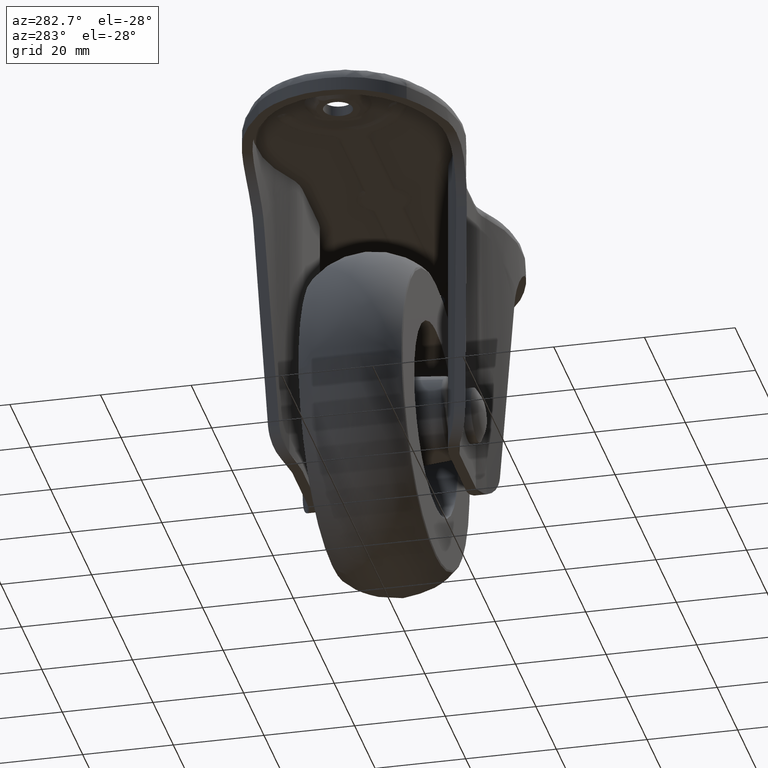
[diagram: clean part render]
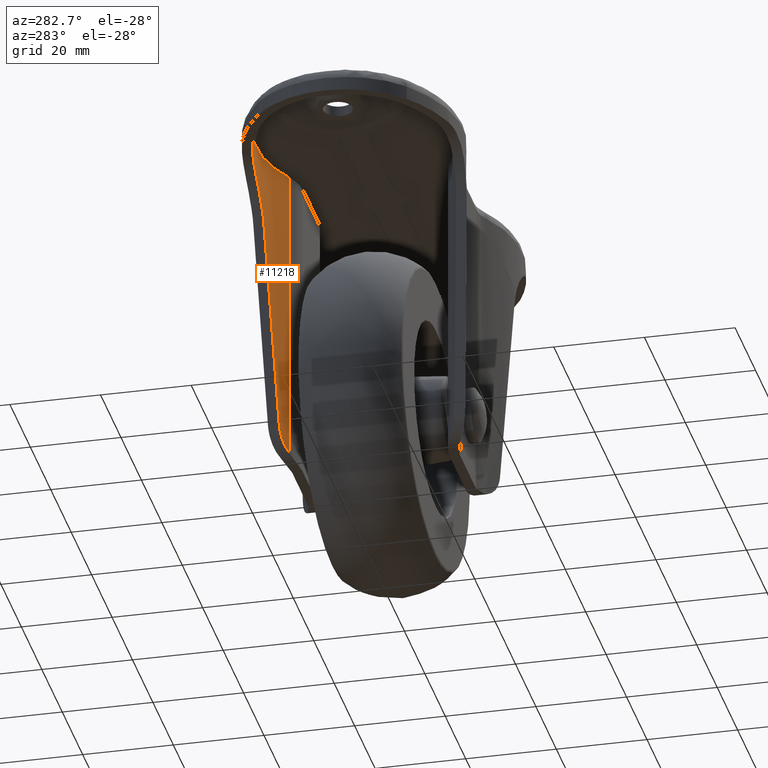
[diagram: same view with one face highlighted and labeled with its STEP entity id]
A machine part, auxiliary view. The second image highlights one B-rep face of the part: STEP entity #11218.
In plain terms, the highlighted face is a freeform B-spline surface patch.
Its self-contained STEP definition (entity closure, byte-faithful):
#10007=CARTESIAN_POINT('',(-13.833428580650979,17.757249201021398,-69.409189690649299));
#10008=VERTEX_POINT('',#10007);
#10024=CARTESIAN_POINT('',(-16.967850549932550,19.281709410888151,-64.113384807680504));
#10025=VERTEX_POINT('',#10024);
#10026=CARTESIAN_POINT('',(-13.833428580650979,17.757249201021398,-69.409189690649299));
#10027=CARTESIAN_POINT('',(-14.234762175945040,17.981036922066242,-69.109389870499427));
#10028=CARTESIAN_POINT('',(-14.609897125387750,18.178625793535449,-68.770854769066261));
#10029=CARTESIAN_POINT('',(-15.128363044796551,18.440597570946970,-68.202598407215547));
#10030=CARTESIAN_POINT('',(-15.293776985321490,18.522156406013242,-68.003054581077890));
#10031=CARTESIAN_POINT('',(-15.529741790853871,18.636173852745340,-67.687698412615831));
#10032=CARTESIAN_POINT('',(-15.606551289381819,18.672876504739492,-67.579604923475586));
#10033=CARTESIAN_POINT('',(-15.754264411172910,18.742769646892391,-67.360357348911492));
#10034=CARTESIAN_POINT('',(-15.825333276745029,18.776042077719762,-67.249011267144340));
#10035=CARTESIAN_POINT('',(-16.030173479756790,18.871077224443169,-66.909857422443935));
#10036=CARTESIAN_POINT('',(-16.155596754766758,18.928072384153271,-66.676946173763312));
#10037=CARTESIAN_POINT('',(-16.383725114055029,19.030255142085451,-66.197492015820131));
#10038=CARTESIAN_POINT('',(-16.486433940424892,19.075443041798842,-65.950950990177574));
#10039=CARTESIAN_POINT('',(-16.622655138533169,19.134701580097438,-65.570598716163957));
#10040=CARTESIAN_POINT('',(-16.665083280389350,19.153030181775669,-65.442054472922166));
#10041=CARTESIAN_POINT('',(-16.743774940402560,19.186846813649112,-65.181347010093077));
#10042=CARTESIAN_POINT('',(-16.779847206923520,19.202252724976109,-65.049786251325457));
#10043=CARTESIAN_POINT('',(-16.877819442701281,19.243917562755321,-64.652953284179304));
#10044=CARTESIAN_POINT('',(-16.929687901460952,19.265723155231239,-64.384926161141379));
#10045=CARTESIAN_POINT('',(-16.967850549932550,19.281709410888151,-64.113384807680504));
#10046=B_SPLINE_CURVE_WITH_KNOTS('',3,(#10026,#10027,#10028,#10029,#10030,#10031,#10032,#10033,#10034,#10035,#10036,#10037,#10038,#10039,#10040,#10041,#10042,#10043,#10044,#10045),.UNSPECIFIED.,.F.,.U.,(4,2,2,2,2,2,2,2,2,4),(0.0,0.250000000000005,0.375000000000007,0.437500000000008,0.500000000000010,0.625000000000006,0.750000000000002,0.812500000000000,0.874999999999998,1.0),.UNSPECIFIED.);
#10047=EDGE_CURVE('',#10008,#10025,#10046,.T.);
#10109=CARTESIAN_POINT('',(-23.320433999999999,21.177710618863799,-18.912403000000001));
#10110=VERTEX_POINT('',#10109);
#10111=CARTESIAN_POINT('',(-23.320433999999999,21.177710618863799,-18.912403000000001));
#10112=CARTESIAN_POINT('',(-20.042661071769974,20.569725225716191,-42.234971965885762));
#10113=CARTESIAN_POINT('',(-16.967850549932550,19.281709410888151,-64.113384807680504));
#10121=(BOUNDED_CURVE()B_SPLINE_CURVE(2,(#10111,#10112,#10113),.UNSPECIFIED.,.F.,.U.)CURVE()GEOMETRIC_REPRESENTATION_ITEM()QUASI_UNIFORM_CURVE()RATIONAL_B_SPLINE_CURVE((1.0,0.994319154986689,1.0))REPRESENTATION_ITEM(''));
#10122=EDGE_CURVE('',#10110,#10025,#10121,.T.);
#10197=CARTESIAN_POINT('',(-38.174455000000002,20.317931081756701,-6.0));
#10198=VERTEX_POINT('',#10197);
#10199=CARTESIAN_POINT('',(-38.174455000000002,20.317931081756651,-6.0));
#10200=CARTESIAN_POINT('',(-37.740496643299139,20.451712756560049,-6.0));
#10201=CARTESIAN_POINT('',(-37.307024442742332,20.574956163153999,-6.018799539364684));
#10202=CARTESIAN_POINT('',(-36.441266468314033,20.801212007461238,-6.094133352030941));
#10203=CARTESIAN_POINT('',(-36.008980243022307,20.904223150804921,-6.150666614473415));
#10204=CARTESIAN_POINT('',(-35.145897099197583,21.090720448831931,-6.302387270066298));
#10205=CARTESIAN_POINT('',(-34.715099298647907,21.174205460200909,-6.397570631324612));
#10206=CARTESIAN_POINT('',(-34.070328165966849,21.285243384069211,-6.570666534310171));
#10207=CARTESIAN_POINT('',(-33.855527803608339,21.319907727793669,-6.633462310180113));
#10208=CARTESIAN_POINT('',(-33.426941479583228,21.384503343375162,-6.769341101192580));
#10209=CARTESIAN_POINT('',(-33.214739580397797,21.414199088964970,-6.841916475814339));
#10210=CARTESIAN_POINT('',(-32.584353143984274,21.495940405062321,-7.073364163431314));
#10211=CARTESIAN_POINT('',(-32.172375909768853,21.540647688132459,-7.245932740331925));
#10212=CARTESIAN_POINT('',(-31.364987351819050,21.612714032937870,-7.627248976473095));
#10213=CARTESIAN_POINT('',(-30.969575654435079,21.640069396687910,-7.835996502190908));
#10214=CARTESIAN_POINT('',(-30.389177672085172,21.669603534577451,-8.176592670195850));
#10215=CARTESIAN_POINT('',(-30.197834663105048,21.677530532732838,-8.294710221753503));
#10216=CARTESIAN_POINT('',(-29.819482712758319,21.689791418245498,-8.540252874652527));
#10217=CARTESIAN_POINT('',(-29.632310378743959,21.694127456991779,-8.667794999597591));
#10218=CARTESIAN_POINT('',(-29.078498966073301,21.702090039879970,-9.063935177853340));
#10219=CARTESIAN_POINT('',(-28.723990450711739,21.700636829047468,-9.342792919114812));
#10220=CARTESIAN_POINT('',(-28.043400861870239,21.687165225267819,-9.929159960767308));
#10221=CARTESIAN_POINT('',(-27.717322166144541,21.675141408295168,-10.236671480435040));
#10222=CARTESIAN_POINT('',(-27.093358348587198,21.643148680722401,-10.880209244899079));
#10223=CARTESIAN_POINT('',(-26.795472641853902,21.623175701062600,-11.216234732868960));
#10224=CARTESIAN_POINT('',(-26.441027686194271,21.594766569222180,-11.654445448986460));
#10225=CARTESIAN_POINT('',(-26.371036073802831,21.588912304457381,-11.742998333060561));
#10226=CARTESIAN_POINT('',(-26.232862158274639,21.576896137299549,-11.921941914071979));
#10227=CARTESIAN_POINT('',(-26.164604475830739,21.570727084226089,-12.012435827511910));
#10228=CARTESIAN_POINT('',(-25.963149577562540,21.551868659740240,-12.285913854575970));
#10229=CARTESIAN_POINT('',(-25.833475831650631,21.538850862454019,-12.470588583384821));
#10230=CARTESIAN_POINT('',(-25.458063512221582,21.498946803617319,-13.031569080450620));
#10231=CARTESIAN_POINT('',(-25.225905092104291,21.471218968938281,-13.414816940640369));
#10232=CARTESIAN_POINT('',(-24.797066967642579,21.415839387414369,-14.199600291673800));
#10233=CARTESIAN_POINT('',(-24.600388517601459,21.388184411065058,-14.601136214314950));
#10234=CARTESIAN_POINT('',(-24.242670033749668,21.335015157637869,-15.422715152469960));
#10235=CARTESIAN_POINT('',(-24.081627470869549,21.309498734702100,-15.842756722161720));
#10236=CARTESIAN_POINT('',(-23.903274729956511,21.280123133508202,-16.379802728837159));
#10237=CARTESIAN_POINT('',(-23.868743653422481,21.274371792781132,-16.487855715602841));
#10238=CARTESIAN_POINT('',(-23.802251025625960,21.263190002190061,-16.704353821157749));
#10239=CARTESIAN_POINT('',(-23.706266605561169,21.246881945791571,-17.029981018096080));
#10240=CARTESIAN_POINT('',(-23.621494787518252,21.232070027371510,-17.358240763478580));
#10241=CARTESIAN_POINT('',(-23.466853985168051,21.204686703947061,-18.018269375013990));
#10242=CARTESIAN_POINT('',(-23.383599090429939,21.189426943613761,-18.462960397674010));
#10243=CARTESIAN_POINT('',(-23.320433999999999,21.177710618863799,-18.912403000000001));
#10244=B_SPLINE_CURVE_WITH_KNOTS('',3,(#10199,#10200,#10201,#10202,#10203,#10204,#10205,#10206,#10207,#10208,#10209,#10210,#10211,#10212,#10213,#10214,#10215,#10216,#10217,#10218,#10219,#10220,#10221,#10222,#10223,#10224,#10225,#10226,#10227,#10228,#10229,#10230,#10231,#10232,#10233,#10234,#10235,#10236,#10237,#10238,#10239,#10240,#10241,#10242,#10243),.UNSPECIFIED.,.F.,.U.,(4,2,2,2,2,2,2,2,2,2,2,2,2,2,2,2,2,2,2,2,1,2,4),(0.0,0.062500000000001,0.125000000000001,0.187500000000002,0.218750000000002,0.250000000000002,0.312500000000001,0.374999999999999,0.406249999999999,0.437499999999999,0.499999999999998,0.562499999999997,0.624999999999996,0.640624999999996,0.656249999999996,0.687499999999997,0.749999999999997,0.812499999999998,0.874999999999998,0.890624999999998,0.906249999999999,0.937499999999999,1.0),.UNSPECIFIED.);
#10245=EDGE_CURVE('',#10198,#10110,#10244,.T.);
#10566=CARTESIAN_POINT('',(-48.855124139328701,14.549623539646300,-6.0));
#10567=VERTEX_POINT('',#10566);
#10568=CARTESIAN_POINT('',(-48.855124139328701,14.549623539646300,-6.0));
#10569=CARTESIAN_POINT('',(-44.087883843665075,18.494925711954419,-6.0));
#10570=CARTESIAN_POINT('',(-38.174455000000002,20.317931081756690,-6.0));
#10578=(BOUNDED_CURVE()B_SPLINE_CURVE(2,(#10568,#10569,#10570),.UNSPECIFIED.,.F.,.U.)CURVE()GEOMETRIC_REPRESENTATION_ITEM()QUASI_UNIFORM_CURVE()RATIONAL_B_SPLINE_CURVE((1.0,0.980824274334982,1.0))REPRESENTATION_ITEM(''));
#10579=EDGE_CURVE('',#10567,#10198,#10578,.T.);
#10709=CARTESIAN_POINT('',(-48.855124086431204,14.549623475728440,-2.299999999999970));
#10710=VERTEX_POINT('',#10709);
#10711=CARTESIAN_POINT('',(-48.855124086431204,14.549623475728440,-2.299999999999970));
#10712=CARTESIAN_POINT('',(-48.855124139328701,14.549623539646300,-6.0));
#10713=QUASI_UNIFORM_CURVE('',1,(#10711,#10712),.UNSPECIFIED.,.F.,.U.);
#10714=EDGE_CURVE('',#10710,#10567,#10713,.T.);
#11177=CARTESIAN_POINT('',(-13.012291023727981,17.282842247902931,-0.622270257733735));
#11178=CARTESIAN_POINT('',(-13.012291023727981,17.282842247902931,-71.128862676472195));
#11179=CARTESIAN_POINT('',(-33.051627331564276,29.271061067632374,-0.622270257733736));
#11180=CARTESIAN_POINT('',(-33.051627331564276,29.271061067632374,-71.128862676472195));
#11181=CARTESIAN_POINT('',(-50.174590099895390,13.393512889068161,-0.622270257733735));
#11182=CARTESIAN_POINT('',(-50.174590099895390,13.393512889068161,-71.128862676472210));
#11190=(BOUNDED_SURFACE()B_SPLINE_SURFACE(1,2,((#11177,#11179,#11181),(#11178,#11180,#11182)),.UNSPECIFIED.,.F.,.F.,.U.)B_SPLINE_SURFACE_WITH_KNOTS((2,2),(3,3),(0.0,70.506592418738464),(0.0,41.515388376456613),.UNSPECIFIED.)GEOMETRIC_REPRESENTATION_ITEM()RATIONAL_B_SPLINE_SURFACE(((1.0,0.797107279906754,0.992628508772105),(1.0,0.797107279906754,0.992628508772105)))REPRESENTATION_ITEM('')SURFACE());
#11191=ORIENTED_EDGE('',*,*,#10047,.F.);
#11192=CARTESIAN_POINT('',(-13.833428572400400,17.757249215817701,-2.299999999999970));
#11193=VERTEX_POINT('',#11192);
#11194=CARTESIAN_POINT('',(-13.833428572400400,17.757249215817701,-2.299999999999970));
#11195=CARTESIAN_POINT('',(-13.833428580650979,17.757249201021398,-69.409189690649299));
#11196=QUASI_UNIFORM_CURVE('',1,(#11194,#11195),.UNSPECIFIED.,.F.,.U.);
#11197=EDGE_CURVE('',#11193,#10008,#11196,.T.);
#11198=ORIENTED_EDGE('',*,*,#11197,.F.);
#11199=CARTESIAN_POINT('',(-48.855124086431211,14.549623475728430,-2.299999999999970));
#11200=CARTESIAN_POINT('',(-32.441508627186643,28.133305119248238,-2.299999999999970));
#11201=CARTESIAN_POINT('',(-13.833428572400400,17.757249215817701,-2.299999999999970));
#11209=(BOUNDED_CURVE()B_SPLINE_CURVE(2,(#11199,#11200,#11201),.UNSPECIFIED.,.F.,.U.)CURVE()GEOMETRIC_REPRESENTATION_ITEM()QUASI_UNIFORM_CURVE()RATIONAL_B_SPLINE_CURVE((1.0,0.825334444451731,1.0))REPRESENTATION_ITEM(''));
#11210=EDGE_CURVE('',#10710,#11193,#11209,.T.);
#11211=ORIENTED_EDGE('',*,*,#11210,.F.);
#11212=ORIENTED_EDGE('',*,*,#10714,.T.);
#11213=ORIENTED_EDGE('',*,*,#10579,.T.);
#11214=ORIENTED_EDGE('',*,*,#10245,.T.);
#11215=ORIENTED_EDGE('',*,*,#10122,.T.);
#11216=EDGE_LOOP('',(#11191,#11198,#11211,#11212,#11213,#11214,#11215));
#11217=FACE_OUTER_BOUND('',#11216,.T.);
#11218=ADVANCED_FACE('',(#11217),#11190,.F.);